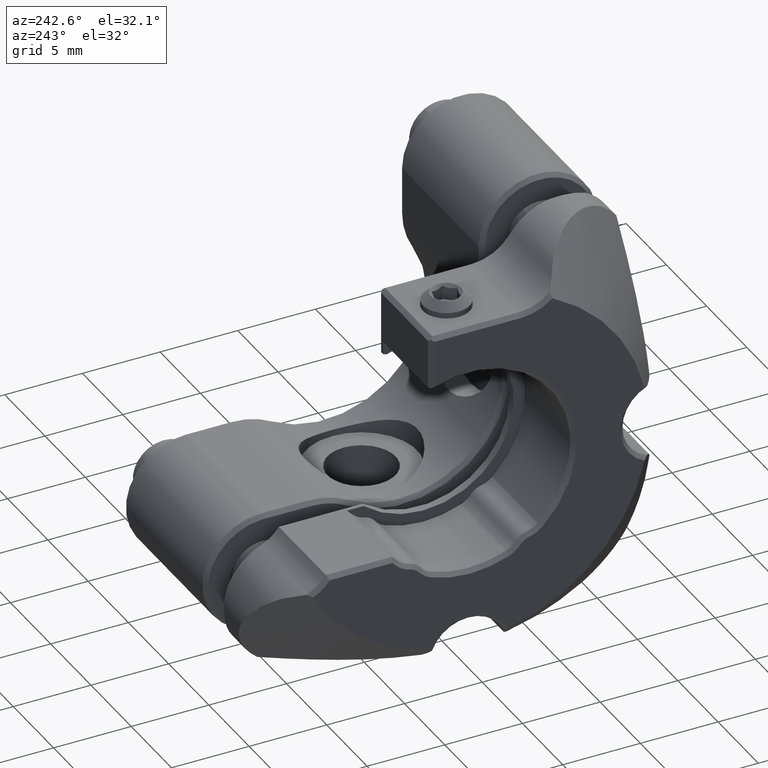
[diagram: clean part render]
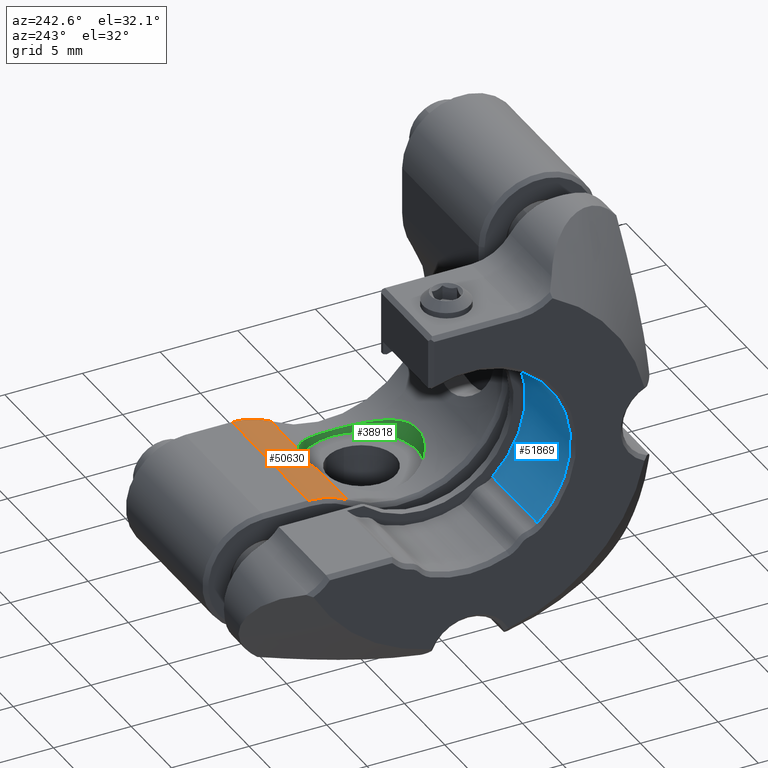
[diagram: same view with three faces highlighted in distinct colors, each labeled with its STEP entity id]
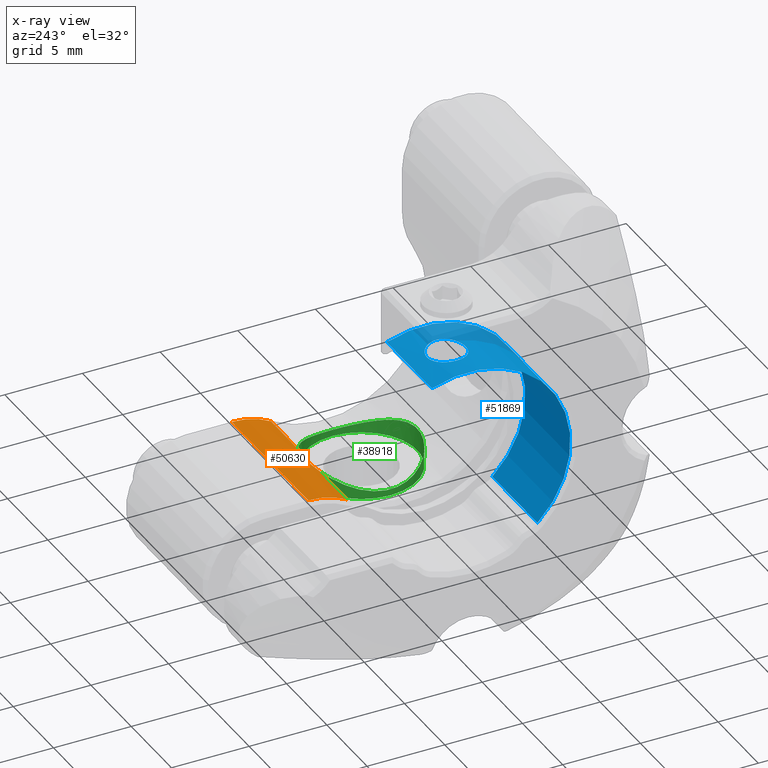
[diagram: x-ray of the same camera — body ghosted, the three highlighted faces saturated]
A machine part, auxiliary view with three faces highlighted in distinct colors.
The next image is the same camera in x-ray (body ghosted, the three faces saturated) — at least one of them is partly hidden behind the body in this view.
Their STEP definitions:

[orange] entity #50630 — the highlighted cylindrical surface (partial cylindrical patch) has radius 5 mm, axis along (1, -0, -0).
#834 = VECTOR ( 'NONE', #47317, 1000.000000000000000 ) ;
#2473 = DIRECTION ( 'NONE',  ( 0.000000000000000000, 0.000000000000000000, -1.000000000000000000 ) ) ;
#4120 = DIRECTION ( 'NONE',  ( 1.000000000000000000, -0.000000000000000000, -0.000000000000000000 ) ) ;
#5649 = CARTESIAN_POINT ( 'NONE',  ( -0.4452364508144853184, 3.579069820924474676, -5.641011432723111341 ) ) ;
#8348 = AXIS2_PLACEMENT_3D ( 'NONE', #20461, #51678, #16409 ) ;
#9661 = VECTOR ( 'NONE', #4120, 1000.000000000000000 ) ;
#10506 = CIRCLE ( 'NONE', #46968, 5.000000000011750600 ) ;
#11239 = VECTOR ( 'NONE', #54967, 1000.000000000000000 ) ;
#11342 = CARTESIAN_POINT ( 'NONE',  ( -0.8758687427873029785, 3.498689786990900608, -5.683620792322312099 ) ) ;
#12177 = EDGE_CURVE ( 'NONE', #16601, #53964, #34489, .T. ) ;
#12233 = ORIENTED_EDGE ( 'NONE', *, *, #65169, .T. ) ;
#15183 = CARTESIAN_POINT ( 'NONE',  ( -4.750000000000680345, 5.880688735173795756, -5.080000000002274696 ) ) ;
#16080 = CARTESIAN_POINT ( 'NONE',  ( -5.000000000000000000, 5.880688735173796644, -5.080000000000000959 ) ) ;
#16409 = DIRECTION ( 'NONE',  ( 0.000000000000000000, 2.602085213965211036E-15, -1.000000000000000000 ) ) ;
#16568 = B_SPLINE_CURVE_WITH_KNOTS ( 'NONE', 3,
 ( #42921, #32168, #11342, #5649, #26475, #31844, #37226, #52325, #17046, #21103 ),
 .UNSPECIFIED., .F., .F.,
 ( 4, 2, 2, 2, 4 ),
 ( 2.168404344971008868E-19, 0.0006596796358284756287, 0.001319359271656951041, 0.001979038907485426019, 0.002638718543313901647 ),
 .UNSPECIFIED. ) ;
#16601 = VERTEX_POINT ( 'NONE', #46320 ) ;
#17046 = CARTESIAN_POINT ( 'NONE',  ( 1.085658750517663362, 3.439335965293534692, -5.715598782978195125 ) ) ;
#19241 = CARTESIAN_POINT ( 'NONE',  ( -5.000000000000000000, 3.361113441611760067, -5.761233933161952869 ) ) ;
#20206 = CARTESIAN_POINT ( 'NONE',  ( -1.289541171353893789, 3.361113441611756958, -5.761233933161954646 ) ) ;
#20461 = CARTESIAN_POINT ( 'NONE',  ( 4.749999999999992895, 5.880688735173795756, -10.08000000000000007 ) ) ;
#21103 = CARTESIAN_POINT ( 'NONE',  ( 1.289541171353889348, 3.361113441611758734, -5.761233933161952869 ) ) ;
#22489 = VERTEX_POINT ( 'NONE', #27600 ) ;
#23330 = VERTEX_POINT ( 'NONE', #27028 ) ;
#23740 = CARTESIAN_POINT ( 'NONE',  ( -5.000000000000000000, 3.361113441611756514, -5.761233933161953757 ) ) ;
#26475 = CARTESIAN_POINT ( 'NONE',  ( -0.2217522953389916285, 3.599941485950977960, -5.630484072456039435 ) ) ;
#27028 = CARTESIAN_POINT ( 'NONE',  ( 4.749999999986125765, 3.361113441601507823, -5.761233933153602216 ) ) ;
#27600 = CARTESIAN_POINT ( 'NONE',  ( 4.749999999971914910, 5.880688735173795756, -5.079999999991001047 ) ) ;
#28813 = EDGE_CURVE ( 'NONE', #53964, #41278, #16568, .T. ) ;
#31509 = ORIENTED_EDGE ( 'NONE', *, *, #12177, .T. ) ;
#31844 = CARTESIAN_POINT ( 'NONE',  ( 0.2198483357740601829, 3.600058262308600376, -5.630424216788355807 ) ) ;
#32168 = CARTESIAN_POINT ( 'NONE',  ( -1.085633733555855462, 3.439345563423081842, -5.715593183413480993 ) ) ;
#34016 = CARTESIAN_POINT ( 'NONE',  ( -4.749999999944520823, 5.880688735173795756, -10.08000000000000007 ) ) ;
#34489 = LINE ( 'NONE', #23740, #11239 ) ;
#35928 = LINE ( 'NONE', #16080, #834 ) ;
#37226 = CARTESIAN_POINT ( 'NONE',  ( 0.4386492774397707795, 3.579970137332292079, -5.640545416440982507 ) ) ;
#40403 = EDGE_CURVE ( 'NONE', #16601, #42856, #10506, .T. ) ;
#41278 = VERTEX_POINT ( 'NONE', #45756 ) ;
#42790 = CYLINDRICAL_SURFACE ( 'NONE', #44915, 4.999999999999999112 ) ;
#42856 = VERTEX_POINT ( 'NONE', #15183 ) ;
#42921 = CARTESIAN_POINT ( 'NONE',  ( -1.289541171353893789, 3.361113441611756958, -5.761233933161954646 ) ) ;
#44577 = ORIENTED_EDGE ( 'NONE', *, *, #28813, .T. ) ;
#44915 = AXIS2_PLACEMENT_3D ( 'NONE', #47817, #48486, #2473 ) ;
#44948 = ORIENTED_EDGE ( 'NONE', *, *, #47128, .T. ) ;
#45428 = DIRECTION ( 'NONE',  ( -1.000000000000000000, -0.000000000000000000, -0.000000000000000000 ) ) ;
#45756 = CARTESIAN_POINT ( 'NONE',  ( 1.289541171353889348, 3.361113441611758734, -5.761233933161952869 ) ) ;
#45922 = EDGE_LOOP ( 'NONE', ( #12233, #53522, #44948, #59787, #31509, #44577 ) ) ;
#46320 = CARTESIAN_POINT ( 'NONE',  ( -4.749999999958389729, 3.361113441607569641, -5.761233933115955885 ) ) ;
#46968 = AXIS2_PLACEMENT_3D ( 'NONE', #34016, #45428, #60842 ) ;
#47128 = EDGE_CURVE ( 'NONE', #22489, #42856, #35928, .T. ) ;
#47317 = DIRECTION ( 'NONE',  ( -1.000000000000000000, 0.000000000000000000, 0.000000000000000000 ) ) ;
#47490 = FACE_OUTER_BOUND ( 'NONE', #45922, .T. ) ;
#47635 = EDGE_CURVE ( 'NONE', #23330, #22489, #53366, .T. ) ;
#47817 = CARTESIAN_POINT ( 'NONE',  ( -5.000000000000000000, 5.880688735173795756, -10.08000000000000007 ) ) ;
#48486 = DIRECTION ( 'NONE',  ( 1.000000000000000000, -0.000000000000000000, -0.000000000000000000 ) ) ;
#50630 = ADVANCED_FACE ( 'NONE', ( #47490 ), #42790, .T. ) ;
#51678 = DIRECTION ( 'NONE',  ( -1.000000000000000000, 0.000000000000000000, 0.000000000000000000 ) ) ;
#52325 = CARTESIAN_POINT ( 'NONE',  ( 0.8721858862935965018, 3.499698723110273413, -5.683074980353803873 ) ) ;
#53366 = CIRCLE ( 'NONE', #8348, 4.999999999999999112 ) ;
#53522 = ORIENTED_EDGE ( 'NONE', *, *, #47635, .T. ) ;
#53964 = VERTEX_POINT ( 'NONE', #20206 ) ;
#54967 = DIRECTION ( 'NONE',  ( 1.000000000000000000, -0.000000000000000000, -0.000000000000000000 ) ) ;
#59787 = ORIENTED_EDGE ( 'NONE', *, *, #40403, .F. ) ;
#60842 = DIRECTION ( 'NONE',  ( 0.000000000000000000, 0.000000000000000000, -1.000000000000000000 ) ) ;
#65169 = EDGE_CURVE ( 'NONE', #41278, #23330, #65240, .T. ) ;
#65240 = LINE ( 'NONE', #19241, #9661 ) ;

[blue] entity #51869 — the highlighted cylindrical surface (partial cylindrical patch) has radius 6.6 mm, axis along (-1, 0, 0).
#101 = LINE ( 'NONE', #31647, #29382 ) ;
#383 = CARTESIAN_POINT ( 'NONE',  ( -13.24831131910682736, 2.333122570985595168, 6.177629118068820979 ) ) ;
#1013 = EDGE_CURVE ( 'NONE', #25394, #12203, #11130, .T. ) ;
#1383 = DIRECTION ( 'NONE',  ( 0.000000000000000000, -8.016011800833876602E-16, 1.000000000000000000 ) ) ;
#2349 = CARTESIAN_POINT ( 'NONE',  ( -11.79040712955865722, -0.3185436950087270902, 6.593557710723839449 ) ) ;
#2685 = CARTESIAN_POINT ( 'NONE',  ( -11.20283069434460543, -1.082295052453007722, 6.509297135258278466 ) ) ;
#3017 = CARTESIAN_POINT ( 'NONE',  ( -9.323311319104472972, 0.009999999999980116808, 6.599999999999988098 ) ) ;
#3345 = CARTESIAN_POINT ( 'NONE',  ( -10.65401752810562641, -1.240065357811815039, 6.480535209817492870 ) ) ;
#3676 = CARTESIAN_POINT ( 'NONE',  ( -9.481613885843238165, -0.6204938236962220799, 6.571566156513726220 ) ) ;
#4503 = EDGE_CURVE ( 'NONE', #25394, #40717, #39038, .T. ) ;
#6217 = EDGE_CURVE ( 'NONE', #14935, #40717, #101, .T. ) ;
#7080 = DIRECTION ( 'NONE',  ( -1.000000000000000000, 0.000000000000000000, 0.000000000000000000 ) ) ;
#8287 = DIRECTION ( 'NONE',  ( 0.000000000000000000, -8.016011800833876602E-16, 1.000000000000000000 ) ) ;
#8704 = CARTESIAN_POINT ( 'NONE',  ( -10.97549423733192420, -1.176370381305999357, 6.492575739838050808 ) ) ;
#8947 = CARTESIAN_POINT ( 'NONE',  ( -7.648311319104465156, -4.462013064346440849, -4.853977662939442439 ) ) ;
#11130 = LINE ( 'NONE', #26273, #28178 ) ;
#11823 = CARTESIAN_POINT ( 'NONE',  ( -13.24831131912104176, -4.462013064365147663, -4.853977662933794512 ) ) ;
#12112 = FACE_BOUND ( 'NONE', #43280, .T. ) ;
#12203 = VERTEX_POINT ( 'NONE', #8947 ) ;
#12878 = ORIENTED_EDGE ( 'NONE', *, *, #27601, .F. ) ;
#13413 = CARTESIAN_POINT ( 'NONE',  ( -11.34038322238513175, -0.9905612960623119134, 6.524769684664174285 ) ) ;
#13998 = CARTESIAN_POINT ( 'NONE',  ( -7.648311319104465156, 0.009999999999987123356, -1.634772123992837882E-14 ) ) ;
#14082 = CARTESIAN_POINT ( 'NONE',  ( -9.323311319104472972, 0.1755394800314807879, 6.599999999999988987 ) ) ;
#14935 = VERTEX_POINT ( 'NONE', #59683 ) ;
#15083 = EDGE_CURVE ( 'NONE', #12203, #14935, #63673, .T. ) ;
#17916 = CARTESIAN_POINT ( 'NONE',  ( -9.323311319104472972, 0.009999999999980050888, 6.599999999999985434 ) ) ;
#18132 = CARTESIAN_POINT ( 'NONE',  ( -11.82330990577322005, -0.1555509511686439250, 6.599999732323611923 ) ) ;
#18464 = CARTESIAN_POINT ( 'NONE',  ( -10.24416322403359381, -1.206817077903209467, 6.487170025862559086 ) ) ;
#18820 = ORIENTED_EDGE ( 'NONE', *, *, #6217, .F. ) ;
#19368 = ORIENTED_EDGE ( 'NONE', *, *, #1013, .F. ) ;
#22825 = CARTESIAN_POINT ( 'NONE',  ( -9.356030163948069855, -0.3179517293891390706, 6.593591727908719058 ) ) ;
#23165 = CARTESIAN_POINT ( 'NONE',  ( -9.574448555213344036, -0.7589123094562988392, 6.556084270093239574 ) ) ;
#23748 = DIRECTION ( 'NONE',  ( -1.000000000000000000, 0.000000000000000000, 0.000000000000000000 ) ) ;
#23829 = CARTESIAN_POINT ( 'NONE',  ( -9.356213130064721994, 0.3385352722646205459, 6.593558155886746874 ) ) ;
#25394 = VERTEX_POINT ( 'NONE', #11823 ) ;
#26273 = CARTESIAN_POINT ( 'NONE',  ( 11.51930770422039529, -4.462013064346441737, -4.853977662939441551 ) ) ;
#26915 = FACE_OUTER_BOUND ( 'NONE', #36120, .T. ) ;
#27601 = EDGE_CURVE ( 'NONE', #63913, #63913, #53437, .T. ) ;
#27801 = ORIENTED_EDGE ( 'NONE', *, *, #15083, .F. ) ;
#28178 = VECTOR ( 'NONE', #66247, 1000.000000000000000 ) ;
#28206 = CARTESIAN_POINT ( 'NONE',  ( -10.89749065370497050, -1.199999313158994996, 6.488155794166408086 ) ) ;
#28874 = CARTESIAN_POINT ( 'NONE',  ( -9.323311319104474748, -0.1555394800315173243, 6.599999999999987210 ) ) ;
#29200 = CARTESIAN_POINT ( 'NONE',  ( -10.73704454078682069, -1.231926733323983836, 6.482120172927650081 ) ) ;
#29382 = VECTOR ( 'NONE', #62196, 1000.000000000000000 ) ;
#30536 = DIRECTION ( 'NONE',  ( -1.000000000000000000, 0.000000000000000000, 0.000000000000000000 ) ) ;
#31647 = CARTESIAN_POINT ( 'NONE',  ( 11.51930770422039529, 2.333122570961354558, 6.177629118058939106 ) ) ;
#32956 = CARTESIAN_POINT ( 'NONE',  ( 11.51930770422039529, 0.009999999999987123356, -1.634772123992837882E-14 ) ) ;
#33258 = CARTESIAN_POINT ( 'NONE',  ( -9.481752113275307536, 0.6406836981050177959, 6.571543399622893133 ) ) ;
#33652 = AXIS2_PLACEMENT_3D ( 'NONE', #55068, #30536, #46652 ) ;
#36120 = EDGE_LOOP ( 'NONE', ( #48551, #18820, #27801, #19368 ) ) ;
#37968 = AXIS2_PLACEMENT_3D ( 'NONE', #13998, #23748, #8287 ) ;
#38639 = CARTESIAN_POINT ( 'NONE',  ( -11.57217794935398381, 0.7789074786995053845, 6.556084856569759367 ) ) ;
#38970 = CARTESIAN_POINT ( 'NONE',  ( -11.66486683373745947, -0.6206898840392456318, 6.571542780378615944 ) ) ;
#39038 = CIRCLE ( 'NONE', #33652, 6.599999999991723598 ) ;
#39644 = CARTESIAN_POINT ( 'NONE',  ( -10.24913028470626308, 1.219998886959413165, 6.488155874080044683 ) ) ;
#40717 = VERTEX_POINT ( 'NONE', #383 ) ;
#43280 = EDGE_LOOP ( 'NONE', ( #12878 ) ) ;
#43341 = CARTESIAN_POINT ( 'NONE',  ( -11.82331273234459346, 0.1755296076368144109, 6.600000267659106079 ) ) ;
#43675 = CARTESIAN_POINT ( 'NONE',  ( -9.943587307216686710, -1.081984403926009142, 6.509346265725064917 ) ) ;
#44004 = CARTESIAN_POINT ( 'NONE',  ( -11.79059493588110996, 0.3379430925315289880, 6.593592187711322161 ) ) ;
#44336 = CARTESIAN_POINT ( 'NONE',  ( -10.49260467115710149, 1.260065358166891469, 6.480535209749000991 ) ) ;
#44670 = CARTESIAN_POINT ( 'NONE',  ( -9.323311319104472972, 0.009999999999980116808, 6.599999999999988098 ) ) ;
#46652 = DIRECTION ( 'NONE',  ( 0.000000000000000000, -8.016011800843930634E-16, 1.000000000000000000 ) ) ;
#47410 = CYLINDRICAL_SURFACE ( 'NONE', #49217, 6.600000000000001421 ) ;
#48551 = ORIENTED_EDGE ( 'NONE', *, *, #4503, .T. ) ;
#48700 = CARTESIAN_POINT ( 'NONE',  ( -11.57299121265140762, -0.7582202304147366290, 6.556186393222212416 ) ) ;
#49032 = CARTESIAN_POINT ( 'NONE',  ( -10.40957721142854098, 1.251926644971463665, 6.482120190285920458 ) ) ;
#49217 = AXIS2_PLACEMENT_3D ( 'NONE', #32956, #7080, #1383 ) ;
#51869 = ADVANCED_FACE ( 'NONE', ( #26915, #12112 ), #47410, .F. ) ;
#53437 = B_SPLINE_CURVE_WITH_KNOTS ( 'NONE', 3,
 ( #44670, #28874, #22825, #3676, #23165, #59767, #43675, #18464, #54397, #3345, #29200, #28206, #8704, #2685, #13413, #48700, #38970, #2349, #18132, #43341, #44004, #54734, #38639, #64459, #59099, #54061, #59432, #44336, #49032, #39644, #65129, #63797, #58761, #60096, #33258, #23829, #14082, #3017 ),
 .UNSPECIFIED., .T., .F.,
 ( 4, 2, 2, 2, 2, 2, 2, 2, 2, 2, 2, 2, 2, 2, 2, 2, 2, 2, 4 ),
 ( 0.000000000000000000, 0.0004894858299303875499, 0.0009789716598607750998, 0.001468457489791162541, 0.001957943319721550200, 0.002202686234686746306, 0.002447429149651942845, 0.002936914979582340261, 0.003426400809512737677, 0.003915886639443135094, 0.004405372469373531642, 0.004894858299303929058, 0.005384344129234326475, 0.005873829959164723023, 0.006118572874129920430, 0.006363315789095116103, 0.006852801619025512651, 0.007342287448955910067, 0.007831773278886306616 ),
 .UNSPECIFIED. ) ;
#54061 = CARTESIAN_POINT ( 'NONE',  ( -10.90246116425622525, 1.226816720796610305, 6.487170099268945833 ) ) ;
#54397 = CARTESIAN_POINT ( 'NONE',  ( -10.40888087268691287, -1.239868069910144976, 6.480573263667458228 ) ) ;
#54734 = CARTESIAN_POINT ( 'NONE',  ( -11.66501236267425945, 0.6404878326189997750, 6.571566761641117083 ) ) ;
#55068 = CARTESIAN_POINT ( 'NONE',  ( -13.24831131910919524, 0.009999999999987123356, -1.634772123992837882E-14 ) ) ;
#58761 = CARTESIAN_POINT ( 'NONE',  ( -9.806235722927180376, 1.010558592259796828, 6.524770117992311214 ) ) ;
#59099 = CARTESIAN_POINT ( 'NONE',  ( -11.20303842522567628, 1.101982749126491523, 6.509346549729044362 ) ) ;
#59432 = CARTESIAN_POINT ( 'NONE',  ( -10.73774264349932039, 1.259868069199799656, 6.480573263804465967 ) ) ;
#59683 = CARTESIAN_POINT ( 'NONE',  ( -7.648311319104465156, 2.333122570961354558, 6.177629118058939106 ) ) ;
#59767 = CARTESIAN_POINT ( 'NONE',  ( -9.804469548895429654, -0.9889170601724061038, 6.525000521309857859 ) ) ;
#60096 = CARTESIAN_POINT ( 'NONE',  ( -9.573627620808817795, 0.7782154451438717535, 6.556186972549874703 ) ) ;
#62196 = DIRECTION ( 'NONE',  ( -1.000000000000000000, 0.000000000000000000, 0.000000000000000000 ) ) ;
#63673 = CIRCLE ( 'NONE', #37968, 6.600000000000001421 ) ;
#63797 = CARTESIAN_POINT ( 'NONE',  ( -9.943788783623292105, 1.102293369299142345, 6.509297424366137896 ) ) ;
#63913 = VERTEX_POINT ( 'NONE', #17916 ) ;
#64459 = CARTESIAN_POINT ( 'NONE',  ( -11.34215663729687229, 1.008914477079822847, 6.525000936768029725 ) ) ;
#65129 = CARTESIAN_POINT ( 'NONE',  ( -10.17112631714532789, 1.196369706719839554, 6.492575864774018157 ) ) ;
#66247 = DIRECTION ( 'NONE',  ( 1.000000000000000000, -0.000000000000000000, -0.000000000000000000 ) ) ;

[green] entity #38918 — the highlighted cylindrical surface (bore or boss wall) has radius 3.6 mm, axis along (-0, -0, 1).
#406 = CARTESIAN_POINT ( 'NONE',  ( 2.025210945645325111, 2.983435624870252045, -5.966760749047600676 ) ) ;
#2176 = ORIENTED_EDGE ( 'NONE', *, *, #37498, .T. ) ;
#4462 = CARTESIAN_POINT ( 'NONE',  ( 0.4151740498276897395, -3.582203360014100113, -5.626595700009950463 ) ) ;
#5442 = CARTESIAN_POINT ( 'NONE',  ( 3.317582447783693933, 1.413540303943204401, -6.521621077219180052 ) ) ;
#5649 = CARTESIAN_POINT ( 'NONE',  ( -0.4452364508144853184, 3.579069820924474676, -5.641011432723111341 ) ) ;
#5766 = CARTESIAN_POINT ( 'NONE',  ( 3.601827858898342782, 0.1817462797657752316, -6.670986519597963849 ) ) ;
#5823 = DIRECTION ( 'NONE',  ( 1.000000000000000000, 0.000000000000000000, 0.000000000000000000 ) ) ;
#8827 = CARTESIAN_POINT ( 'NONE',  ( -2.155299694021930001, -2.890758961735230947, -6.012754410514317804 ) ) ;
#9160 = CARTESIAN_POINT ( 'NONE',  ( -2.877538729651916150, -2.172918944996705015, -6.308328571751427916 ) ) ;
#9491 = CARTESIAN_POINT ( 'NONE',  ( -3.578378578779711106, -0.4467989678922443808, -6.658276352776757001 ) ) ;
#10471 = CARTESIAN_POINT ( 'NONE',  ( 2.990953516328360706, -2.014154046705554091, -6.361304649685900259 ) ) ;
#10798 = CARTESIAN_POINT ( 'NONE',  ( 3.497823084626172196, -0.8777426023188471538, -6.615326857300157570 ) ) ;
#11342 = CARTESIAN_POINT ( 'NONE',  ( -0.8758687427873029785, 3.498689786990900608, -5.683620792322312099 ) ) ;
#13876 = CARTESIAN_POINT ( 'NONE',  ( -1.055583903286275493, -3.448054375033520191, -5.710241132374289208 ) ) ;
#14204 = CARTESIAN_POINT ( 'NONE',  ( -3.501793264361599878, -0.8613167271397987879, -6.617432039938521804 ) ) ;
#15194 = CARTESIAN_POINT ( 'NONE',  ( -3.444657913059261833, -1.066964616543548905, -6.587152364332745869 ) ) ;
#16176 = CARTESIAN_POINT ( 'NONE',  ( 3.201595554439913727, -1.659037481941838532, -6.463018490108773939 ) ) ;
#16568 = B_SPLINE_CURVE_WITH_KNOTS ( 'NONE', 3,
 ( #42921, #32168, #11342, #5649, #26475, #31844, #37226, #52325, #17046, #21103 ),
 .UNSPECIFIED., .F., .F.,
 ( 4, 2, 2, 2, 4 ),
 ( 2.168404344971008868E-19, 0.0006596796358284756287, 0.001319359271656951041, 0.001979038907485426019, 0.002638718543313901647 ),
 .UNSPECIFIED. ) ;
#17046 = CARTESIAN_POINT ( 'NONE',  ( 1.085658750517663362, 3.439335965293534692, -5.715598782978195125 ) ) ;
#18918 = CARTESIAN_POINT ( 'NONE',  ( -1.289541171353893789, 3.361113441611756958, -5.761233933161954646 ) ) ;
#19907 = VERTEX_POINT ( 'NONE', #60866 ) ;
#19909 = CARTESIAN_POINT ( 'NONE',  ( 1.617322446184952467, -3.222819052211964408, -5.840873790876099925 ) ) ;
#20206 = CARTESIAN_POINT ( 'NONE',  ( -1.289541171353893789, 3.361113441611756958, -5.761233933161954646 ) ) ;
#20291 = FACE_OUTER_BOUND ( 'NONE', #59184, .T. ) ;
#20895 = CARTESIAN_POINT ( 'NONE',  ( 1.486032121206199763, 3.285726765727507992, -5.805214645032461540 ) ) ;
#21103 = CARTESIAN_POINT ( 'NONE',  ( 1.289541171353889348, 3.361113441611758734, -5.761233933161952869 ) ) ;
#21207 = AXIS2_PLACEMENT_3D ( 'NONE', #61095, #35588, #56059 ) ;
#21863 = CARTESIAN_POINT ( 'NONE',  ( 3.584577926183594609, 0.3941642983774257814, -6.661621997530382977 ) ) ;
#23955 = CARTESIAN_POINT ( 'NONE',  ( -1.445993847473698635, -3.303397969233058618, -5.795126799295585940 ) ) ;
#24292 = CARTESIAN_POINT ( 'NONE',  ( -3.583235851248586012, 0.4075120002296630517, -6.660894659198643097 ) ) ;
#24431 = CIRCLE ( 'NONE', #21207, 3.600000000000000533 ) ;
#24947 = CARTESIAN_POINT ( 'NONE',  ( -3.473209610837822758, 1.038939739927785322, -6.602138970204086910 ) ) ;
#25930 = CARTESIAN_POINT ( 'NONE',  ( 2.646009989639988458, 2.449626642414539202, -6.206172925071153479 ) ) ;
#26263 = CARTESIAN_POINT ( 'NONE',  ( 3.025765311130906632, 1.961503670487955375, -6.377786669898964256 ) ) ;
#26475 = CARTESIAN_POINT ( 'NONE',  ( -0.2217522953389916285, 3.599941485950977960, -5.630484072456039435 ) ) ;
#28813 = EDGE_CURVE ( 'NONE', #53964, #41278, #16568, .T. ) ;
#29326 = CARTESIAN_POINT ( 'NONE',  ( 2.144119611499100575, -2.899077227214914121, -6.008738543704584600 ) ) ;
#29987 = CARTESIAN_POINT ( 'NONE',  ( -2.468743346062649557, -2.628138207396057968, -6.132095281291456423 ) ) ;
#30646 = CARTESIAN_POINT ( 'NONE',  ( -2.613002223539188318, -2.484758592288516699, -6.192137017924374653 ) ) ;
#30978 = CARTESIAN_POINT ( 'NONE',  ( 3.597866393948763175, -0.2480988646468233472, -6.668848461933097660 ) ) ;
#31305 = CARTESIAN_POINT ( 'NONE',  ( 3.513941544861318267, 0.8104191645658967991, -6.623880577863731745 ) ) ;
#31362 = CYLINDRICAL_SURFACE ( 'NONE', #51279, 3.600000000000000533 ) ;
#31844 = CARTESIAN_POINT ( 'NONE',  ( 0.2198483357740601829, 3.600058262308600376, -5.630424216788355807 ) ) ;
#31959 = CARTESIAN_POINT ( 'NONE',  ( 2.907030633490152116, 2.133357084140295346, -6.321870025131945070 ) ) ;
#32168 = CARTESIAN_POINT ( 'NONE',  ( -1.085633733555855462, 3.439345563423081842, -5.715593183413480993 ) ) ;
#33303 = B_SPLINE_CURVE_WITH_KNOTS ( 'NONE', 3,
 ( #18918, #35031, #65575, #45779, #55507, #61196, #24947, #24292, #66237, #40749, #9491, #14204, #15194, #34700, #35693, #56163, #9160, #30646, #29987, #8827, #51128, #44460, #23955, #13876, #50479, #64919, #55184, #39430, #4462, #45451, #65909, #44792, #19909, #54852, #29326, #65252, #49818, #46427, #10471, #16176, #51454, #41725, #10798, #36026, #30978, #5766, #21863, #31305, #61522, #5442, #47082, #26263, #31959, #25930, #42049, #52438, #406, #41074, #20895, #37013 ),
 .UNSPECIFIED., .F., .F.,
 ( 4, 2, 2, 2, 2, 2, 2, 2, 2, 2, 2, 2, 2, 2, 2, 2, 2, 2, 2, 2, 2, 2, 2, 2, 2, 2, 2, 2, 2, 4 ),
 ( -0.004423845282551546430, -0.003153917187895691199, -0.001883989093239835967, -0.0006140609985839807355, 2.090304874394731394E-05, 0.0006558670960718744961, 0.001290831143399801678, 0.001925795190727729728, 0.002560759238055657777, 0.003195723285383584959, 0.003830687332711513009, 0.004465651380039441058, 0.005100615427367369108, 0.005735579474695295422, 0.006370543522023223472, 0.007005507569351149787, 0.007640471616679079571, 0.008275435664007006753, 0.008910399711334934802, 0.009545363758662862852, 0.01018032780599079090, 0.01081529185331871548, 0.01145025590064664006, 0.01208521994797456464, 0.01272018399530249269, 0.01335514804263041727, 0.01399011208995834185, 0.01462507613728626643, 0.01526004018461419448, 0.01589500423194211906 ),
 .UNSPECIFIED. ) ;
#34700 = CARTESIAN_POINT ( 'NONE',  ( -3.297272898682547027, -1.460161998742366629, -6.511291477220099821 ) ) ;
#35031 = CARTESIAN_POINT ( 'NONE',  ( -1.682062567121854979, 3.210516769028948669, -5.849092281972705365 ) ) ;
#35588 = DIRECTION ( 'NONE',  ( -0.000000000000000000, -0.000000000000000000, 1.000000000000000000 ) ) ;
#35693 = CARTESIAN_POINT ( 'NONE',  ( -3.207772030205136016, -1.647068361919870716, -6.466089031065179960 ) ) ;
#36026 = CARTESIAN_POINT ( 'NONE',  ( 3.576820791291750901, -0.4599472081144343472, -6.657434195738623828 ) ) ;
#36410 = ORIENTED_EDGE ( 'NONE', *, *, #28813, .F. ) ;
#37013 = CARTESIAN_POINT ( 'NONE',  ( 1.289541171353889348, 3.361113441611758734, -5.761233933161952869 ) ) ;
#37226 = CARTESIAN_POINT ( 'NONE',  ( 0.4386492774397707795, 3.579970137332292079, -5.640545416440982507 ) ) ;
#37498 = EDGE_CURVE ( 'NONE', #53964, #41278, #33303, .T. ) ;
#38918 = ADVANCED_FACE ( 'NONE', ( #20291, #56880 ), #31362, .F. ) ;
#39430 = CARTESIAN_POINT ( 'NONE',  ( 0.1994209232600098469, -3.600755424961949558, -5.614575783375109985 ) ) ;
#40749 = CARTESIAN_POINT ( 'NONE',  ( -3.598671967774125235, -0.2359312950605868819, -6.669283229602766205 ) ) ;
#40807 = CARTESIAN_POINT ( 'NONE',  ( 0.000000000000000000, 0.000000000000000000, -5.079999999999999183 ) ) ;
#41074 = CARTESIAN_POINT ( 'NONE',  ( 1.671962569112946495, 3.194825295629140083, -5.856296892621497108 ) ) ;
#41278 = VERTEX_POINT ( 'NONE', #45756 ) ;
#41725 = CARTESIAN_POINT ( 'NONE',  ( 3.439334495970420846, -1.083684087431189935, -6.584367532181091498 ) ) ;
#42049 = CARTESIAN_POINT ( 'NONE',  ( 2.503454574188709536, 2.595095003952275103, -6.146197790579548403 ) ) ;
#42921 = CARTESIAN_POINT ( 'NONE',  ( -1.289541171353893789, 3.361113441611756958, -5.761233933161954646 ) ) ;
#44460 = CARTESIAN_POINT ( 'NONE',  ( -1.631587708354566901, -3.215559145002493402, -5.844877966568944316 ) ) ;
#44792 = CARTESIAN_POINT ( 'NONE',  ( 1.429869389876236241, -3.310567189170833036, -5.791031125639353405 ) ) ;
#45451 = CARTESIAN_POINT ( 'NONE',  ( 0.8309429663862772930, -3.509142942480371730, -5.672448844468056528 ) ) ;
#45756 = CARTESIAN_POINT ( 'NONE',  ( 1.289541171353889348, 3.361113441611758734, -5.761233933161952869 ) ) ;
#45779 = CARTESIAN_POINT ( 'NONE',  ( -2.655870475587998047, 2.464909642759927966, -6.204788075406892034 ) ) ;
#46427 = CARTESIAN_POINT ( 'NONE',  ( 2.869310971843001212, -2.183762856896430016, -6.304569537838596638 ) ) ;
#47082 = CARTESIAN_POINT ( 'NONE',  ( 3.230445784571486456, 1.602177393525808347, -6.477398170234210717 ) ) ;
#47703 = EDGE_CURVE ( 'NONE', #19907, #19907, #24431, .T. ) ;
#49818 = CARTESIAN_POINT ( 'NONE',  ( 2.603735438306517214, -2.494459347354823997, -6.188221863911878451 ) ) ;
#50479 = CARTESIAN_POINT ( 'NONE',  ( -0.8492929246290884526, -3.504698947310233237, -5.675204504583087228 ) ) ;
#51128 = CARTESIAN_POINT ( 'NONE',  ( -1.985560970375254364, -3.009891476114272102, -5.953400067281463315 ) ) ;
#51279 = AXIS2_PLACEMENT_3D ( 'NONE', #40807, #61250, #5823 ) ;
#51454 = CARTESIAN_POINT ( 'NONE',  ( 3.291386302183137769, -1.473149410726860564, -6.508309904565641624 ) ) ;
#51735 = EDGE_LOOP ( 'NONE', ( #65393 ) ) ;
#52325 = CARTESIAN_POINT ( 'NONE',  ( 0.8721858862935965018, 3.499698723110273413, -5.683074980353803873 ) ) ;
#52438 = CARTESIAN_POINT ( 'NONE',  ( 2.193533883737202483, 2.861854640868610744, -6.026612097605234197 ) ) ;
#53964 = VERTEX_POINT ( 'NONE', #20206 ) ;
#54852 = CARTESIAN_POINT ( 'NONE',  ( 1.973821328595193769, -3.017668620146487957, -5.949457570503966508 ) ) ;
#55184 = CARTESIAN_POINT ( 'NONE',  ( -0.2258212534375836356, -3.599196173664706233, -5.615575461262406698 ) ) ;
#55507 = CARTESIAN_POINT ( 'NONE',  ( -2.915541031098191738, 2.152571284957247588, -6.324271296694104372 ) ) ;
#56059 = DIRECTION ( 'NONE',  ( 1.000000000000000000, 0.000000000000000000, 0.000000000000000000 ) ) ;
#56163 = CARTESIAN_POINT ( 'NONE',  ( -2.998414445247041815, -2.003034298542503144, -6.364824832260600473 ) ) ;
#56880 = FACE_OUTER_BOUND ( 'NONE', #51735, .T. ) ;
#59184 = EDGE_LOOP ( 'NONE', ( #2176, #36410 ) ) ;
#60866 = CARTESIAN_POINT ( 'NONE',  ( 3.600000000000000533, 0.000000000000000000, -7.079999999999999183 ) ) ;
#61095 = CARTESIAN_POINT ( 'NONE',  ( 0.000000000000000000, 0.000000000000000000, -7.079999999999999183 ) ) ;
#61196 = CARTESIAN_POINT ( 'NONE',  ( -3.330466169095341655, 1.428963868455396913, -6.525950722589043629 ) ) ;
#61250 = DIRECTION ( 'NONE',  ( -0.000000000000000000, -0.000000000000000000, 1.000000000000000000 ) ) ;
#61522 = CARTESIAN_POINT ( 'NONE',  ( 3.459902612410560963, 1.016623529802879178, -6.595158395698502041 ) ) ;
#64919 = CARTESIAN_POINT ( 'NONE',  ( -0.4355039190489207179, -3.579741543686571159, -5.628171227008120781 ) ) ;
#65252 = CARTESIAN_POINT ( 'NONE',  ( 2.458910871388021668, -2.637357579916111749, -6.128126357347426278 ) ) ;
#65393 = ORIENTED_EDGE ( 'NONE', *, *, #47703, .F. ) ;
#65575 = CARTESIAN_POINT ( 'NONE',  ( -2.030935095004566815, 3.000788258099808647, -5.964096280052220145 ) ) ;
#65909 = CARTESIAN_POINT ( 'NONE',  ( 1.033968007798041322, -3.454749158038780354, -5.706190048286914340 ) ) ;
#66237 = CARTESIAN_POINT ( 'NONE',  ( -3.601202977544025075, 0.1934957936501542075, -6.670649275032332959 ) ) ;